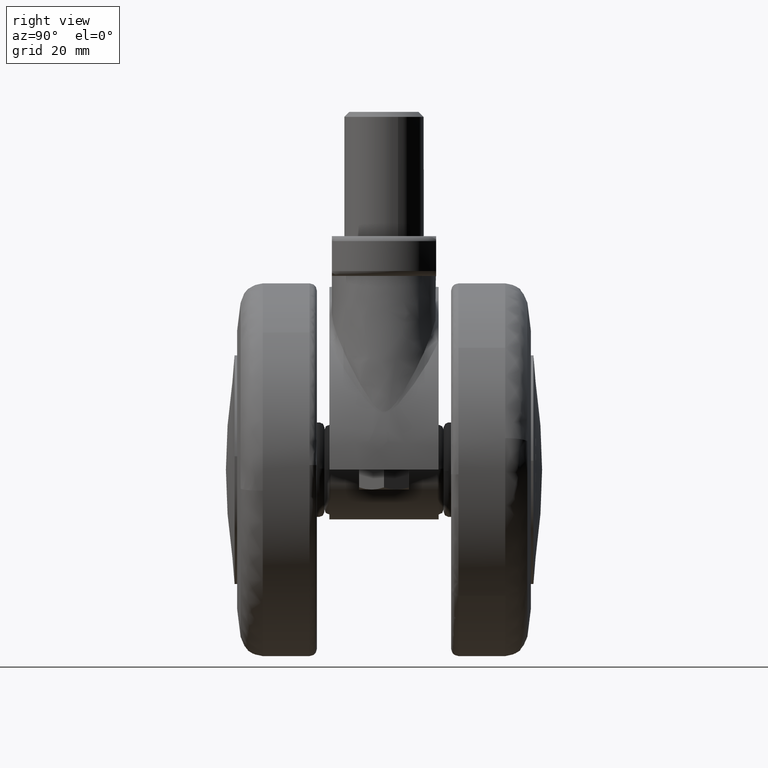
[diagram: clean part render]
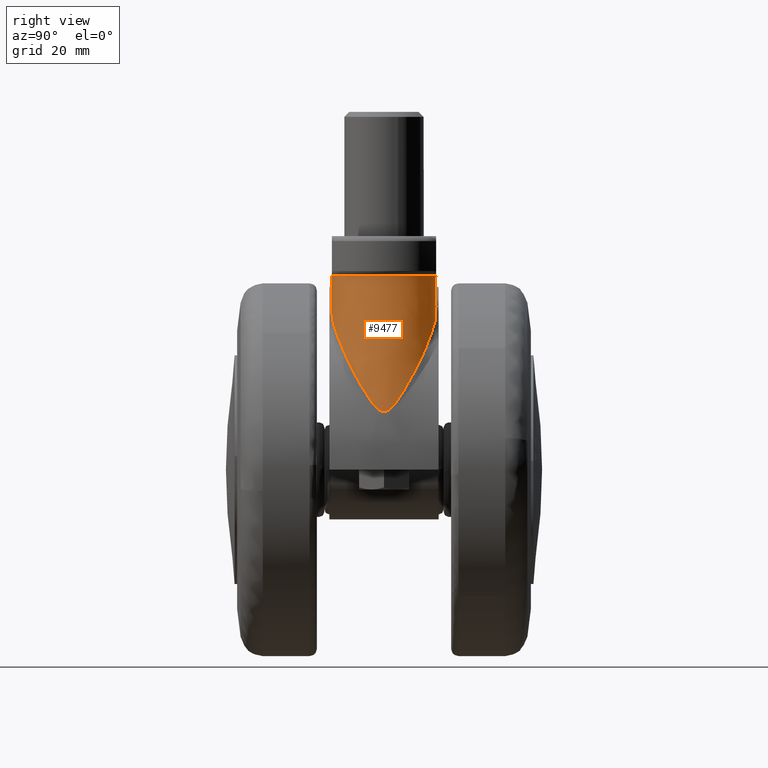
[diagram: same view with one face highlighted and labeled with its STEP entity id]
A machine part, right view. The second image highlights one B-rep face of the part: STEP entity #9477.
In plain terms, the highlighted face is a freeform B-spline surface patch.
Its self-contained STEP definition (entity closure, byte-faithful):
#7871=CARTESIAN_POINT('',(9.734874135307969,2.875159400437090,39.0));
#7872=VERTEX_POINT('',#7871);
#7909=CARTESIAN_POINT('',(9.734874135308280,-2.875159400438115,39.0));
#7910=VERTEX_POINT('',#7909);
#8042=CARTESIAN_POINT('',(15.834273644007199,-9.424800640168330,36.042992598005412));
#8043=VERTEX_POINT('',#8042);
#8059=CARTESIAN_POINT('',(9.734874135308280,-2.875159400438115,39.0));
#8060=CARTESIAN_POINT('',(9.765014946852586,-2.971725987100927,38.987961932139498));
#8061=CARTESIAN_POINT('',(9.796699416023380,-3.067957749255542,38.975272131350849));
#8062=CARTESIAN_POINT('',(9.863174507820219,-3.259745863016546,38.948558339544078));
#8063=CARTESIAN_POINT('',(9.898041406330020,-3.355497784002150,38.934503446514952));
#8064=CARTESIAN_POINT('',(10.006728428578230,-3.640148634965251,38.890530961459071));
#8065=CARTESIAN_POINT('',(10.084478166912660,-3.826137806987287,38.858870211924213));
#8066=CARTESIAN_POINT('',(10.332785888984800,-4.373272351155762,38.756894622463513));
#8067=CARTESIAN_POINT('',(10.518355652744630,-4.723619845631813,38.679613890553057));
#8068=CARTESIAN_POINT('',(10.926585075179609,-5.397147074816104,38.505940396580783));
#8069=CARTESIAN_POINT('',(11.149259347742349,-5.720317123013894,38.409544060022732));
#8070=CARTESIAN_POINT('',(11.509890872524030,-6.185149551346111,38.249585396609803));
#8071=CARTESIAN_POINT('',(11.634547182277871,-6.336766173946026,38.193698887509989));
#8072=CARTESIAN_POINT('',(11.828122530780670,-6.559198968923881,38.105833937558728));
#8073=CARTESIAN_POINT('',(11.893575072163550,-6.632308580095542,38.075950026399113));
#8074=CARTESIAN_POINT('',(12.025779794831941,-6.775953905039536,38.015215864299982));
#8075=CARTESIAN_POINT('',(12.092608204217830,-6.846577595190703,37.984331051875913));
#8076=CARTESIAN_POINT('',(12.430248689094460,-7.193857892863472,37.827311391866182));
#8077=CARTESIAN_POINT('',(12.711520939718110,-7.453052229230631,37.693405138172643));
#8078=CARTESIAN_POINT('',(13.293633666889081,-7.937272633191943,37.408568752348373));
#8079=CARTESIAN_POINT('',(13.594484183909090,-8.162284788316734,37.257635878864043));
#8080=CARTESIAN_POINT('',(14.058920017241670,-8.475670662809202,37.017877502471123));
#8081=CARTESIAN_POINT('',(14.215929892272550,-8.576103517511875,36.935729142439747));
#8082=CARTESIAN_POINT('',(14.454585433310600,-8.720843212216183,36.809069559548931));
#8083=CARTESIAN_POINT('',(14.534762874890280,-8.768162339423656,36.766221692821219));
#8084=CARTESIAN_POINT('',(14.695598953699900,-8.860539796690857,36.679655454487850));
#8085=CARTESIAN_POINT('',(14.776209515660611,-8.905574575668155,36.635963875234751));
#8086=CARTESIAN_POINT('',(15.180156851201581,-9.125156029700733,36.415462183829163));
#8087=CARTESIAN_POINT('',(15.506162540292291,-9.282971687857856,36.232525502262099));
#8088=CARTESIAN_POINT('',(15.834273644007190,-9.424800640168330,36.042992598005377));
#8089=B_SPLINE_CURVE_WITH_KNOTS('',3,(#8059,#8060,#8061,#8062,#8063,#8064,#8065,#8066,#8067,#8068,#8069,#8070,#8071,#8072,#8073,#8074,#8075,#8076,#8077,#8078,#8079,#8080,#8081,#8082,#8083,#8084,#8085,#8086,#8087,#8088),.UNSPECIFIED.,.F.,.U.,(4,2,2,2,2,2,2,2,2,2,2,2,2,2,4),(0.0,0.031250000000000,0.062500000000000,0.125000000000000,0.250000000000000,0.375000000000000,0.437500000000000,0.468750000000001,0.500000000000001,0.625000000000001,0.750000000000002,0.812500000000003,0.843750000000003,0.875000000000003,1.0),.UNSPECIFIED.);
#8090=EDGE_CURVE('',#7910,#8043,#8089,.T.);
#8225=CARTESIAN_POINT('',(15.834272163024050,9.424800000000001,36.042993453493153));
#8226=VERTEX_POINT('',#8225);
#8278=CARTESIAN_POINT('',(15.834272163024030,9.424800000000031,36.042993453493139));
#8279=CARTESIAN_POINT('',(15.507307004264360,9.283466341797638,36.231864388182878));
#8280=CARTESIAN_POINT('',(15.183217956223659,9.126588671450643,36.413732003489862));
#8281=CARTESIAN_POINT('',(14.542307384382291,8.778655094792176,36.763701596248048));
#8282=CARTESIAN_POINT('',(14.225479566498890,8.587615547346342,36.931805288436969));
#8283=CARTESIAN_POINT('',(13.757141502596960,8.272252911238834,37.173708558238673));
#8284=CARTESIAN_POINT('',(13.602896192294541,8.162792457947649,37.252264001329451));
#8285=CARTESIAN_POINT('',(13.298873120510450,7.935196166215691,37.405057824339643));
#8286=CARTESIAN_POINT('',(13.149648062189900,7.817479162857781,37.479019873976704));
#8287=CARTESIAN_POINT('',(12.710647610550110,7.452368673953901,37.693838785172048));
#8288=CARTESIAN_POINT('',(12.429523251913780,7.193045679702175,37.827641975410202));
#8289=CARTESIAN_POINT('',(11.892529837133189,6.640852731537313,38.077384226820762));
#8290=CARTESIAN_POINT('',(11.636648015730801,6.347997167485482,38.193326844980398));
#8291=CARTESIAN_POINT('',(11.274060772394190,5.881437445221686,38.354205244321427));
#8292=CARTESIAN_POINT('',(11.156487775333989,5.720934618763776,38.405764140315988));
#8293=CARTESIAN_POINT('',(10.931703898116970,5.394521469722281,38.503345159788402));
#8294=CARTESIAN_POINT('',(10.824167740370379,5.228237964098526,38.549514434549387));
#8295=CARTESIAN_POINT('',(10.516319186505450,4.720125799719843,38.680475196407713));
#8296=CARTESIAN_POINT('',(10.330719855956330,4.369066170604384,38.757749469488267));
#8297=CARTESIAN_POINT('',(10.083301114738109,3.823368784489873,38.859350381706143));
#8298=CARTESIAN_POINT('',(10.006002576978270,3.638277734453351,38.890824975990952));
#8299=CARTESIAN_POINT('',(9.898124002622998,3.355698993728345,38.934469853992752));
#8300=CARTESIAN_POINT('',(9.863510252711381,3.260681806607597,38.948423123941588));
#8301=CARTESIAN_POINT('',(9.797037506755521,3.068965567155710,38.975136555289090));
#8302=CARTESIAN_POINT('',(9.765141817261602,2.972132460640318,38.987911260823253));
#8303=CARTESIAN_POINT('',(9.734874135307935,2.875159400437097,38.999999999999979));
#8304=B_SPLINE_CURVE_WITH_KNOTS('',3,(#8278,#8279,#8280,#8281,#8282,#8283,#8284,#8285,#8286,#8287,#8288,#8289,#8290,#8291,#8292,#8293,#8294,#8295,#8296,#8297,#8298,#8299,#8300,#8301,#8302,#8303),.UNSPECIFIED.,.F.,.U.,(4,2,2,2,2,2,2,2,2,2,2,2,4),(0.0,0.125000000000000,0.250000000000000,0.312500000000000,0.375000000000000,0.499999999999999,0.624999999999999,0.687499999999999,0.749999999999999,0.875000000000000,0.937500000000000,0.968750000000000,1.0),.UNSPECIFIED.);
#8305=EDGE_CURVE('',#8226,#7872,#8304,.T.);
#8440=CARTESIAN_POINT('',(26.877747129820001,-9.424800640175180,27.080546258881650));
#8441=VERTEX_POINT('',#8440);
#8455=CARTESIAN_POINT('',(15.834273644007199,-9.424800640168330,36.042992598005412));
#8456=CARTESIAN_POINT('',(15.957821354711440,-9.478205239416715,35.971625429012043));
#8457=CARTESIAN_POINT('',(16.080474879437510,-9.528550747649826,35.896862832956977));
#8458=CARTESIAN_POINT('',(16.324467108684779,-9.623992687113347,35.741863585670067));
#8459=CARTESIAN_POINT('',(16.445983128545819,-9.669145522698260,35.661493388375632));
#8460=CARTESIAN_POINT('',(16.807137740395639,-9.796993914353118,35.414900180527688));
#8461=CARTESIAN_POINT('',(17.043792159563601,-9.872324009430907,35.243068456802533));
#8462=CARTESIAN_POINT('',(17.511979131786639,-10.007517437380070,34.889408490841298));
#8463=CARTESIAN_POINT('',(17.743479453118120,-10.067340560872999,34.707530818160052));
#8464=CARTESIAN_POINT('',(18.203417960249471,-10.174012160180320,34.336919483093517));
#8465=CARTESIAN_POINT('',(18.431842068133388,-10.220845274567351,34.148164750146591));
#8466=CARTESIAN_POINT('',(19.115173493928289,-10.344224146907150,33.575455915896342));
#8467=CARTESIAN_POINT('',(19.568077975353820,-10.403924809309640,33.185045392206490));
#8468=CARTESIAN_POINT('',(20.254297257199109,-10.463318131576340,32.600818806073363));
#8469=CARTESIAN_POINT('',(20.484200670487759,-10.478015731930860,32.406315361619733));
#8470=CARTESIAN_POINT('',(20.948082477971621,-10.496936920969111,32.019887235590367));
#8471=CARTESIAN_POINT('',(21.181613247936081,-10.501128212349981,31.828390078726208));
#8472=CARTESIAN_POINT('',(21.651974266879410,-10.498353798498240,31.450719061633372));
#8473=CARTESIAN_POINT('',(21.888948934563899,-10.491378916135430,31.264461591440689));
#8474=CARTESIAN_POINT('',(22.366058364612499,-10.465482318906830,30.896595462039809));
#8475=CARTESIAN_POINT('',(22.606185940065220,-10.446543312471061,30.714978512259570));
#8476=CARTESIAN_POINT('',(23.087628156215491,-10.396226099192480,30.353899025347740));
#8477=CARTESIAN_POINT('',(23.328820060684759,-10.364833037135890,30.174466953646689));
#8478=CARTESIAN_POINT('',(23.807325686735791,-10.290260054598820,29.815524759570071));
#8479=CARTESIAN_POINT('',(24.044856317711229,-10.247063046173491,29.635799242685401));
#8480=CARTESIAN_POINT('',(24.513553743951650,-10.150110281188031,29.272082182400400));
#8481=CARTESIAN_POINT('',(24.744711185984290,-10.096363775777590,29.088077066893941));
#8482=CARTESIAN_POINT('',(25.198355848847431,-9.980108177675335,28.712597097372079));
#8483=CARTESIAN_POINT('',(25.420844559444390,-9.917606668684879,28.521121735042559));
#8484=CARTESIAN_POINT('',(26.072977574327620,-9.720033512811925,27.931885441177410));
#8485=CARTESIAN_POINT('',(26.487067933749760,-9.574930112454259,27.519047386537139));
#8486=CARTESIAN_POINT('',(26.877747129820001,-9.424800640175189,27.080546258881650));
#8487=B_SPLINE_CURVE_WITH_KNOTS('',3,(#8455,#8456,#8457,#8458,#8459,#8460,#8461,#8462,#8463,#8464,#8465,#8466,#8467,#8468,#8469,#8470,#8471,#8472,#8473,#8474,#8475,#8476,#8477,#8478,#8479,#8480,#8481,#8482,#8483,#8484,#8485,#8486),.UNSPECIFIED.,.F.,.U.,(4,2,2,2,2,2,2,2,2,2,2,2,2,2,2,4),(0.0,0.031250000000000,0.062500000000000,0.125000000000001,0.187500000000001,0.250000000000002,0.375000000000001,0.437500000000001,0.500000000000001,0.562500000000001,0.625000000000001,0.687500000000000,0.750000000000000,0.812500000000000,0.875000000000000,1.0),.UNSPECIFIED.);
#8488=EDGE_CURVE('',#8043,#8441,#8487,.T.);
#8635=CARTESIAN_POINT('',(26.877748795748751,9.424799999995100,27.080544389031001));
#8636=VERTEX_POINT('',#8635);
#8666=CARTESIAN_POINT('',(26.877748795748751,9.424799999995100,27.080544389031001));
#8667=CARTESIAN_POINT('',(26.682718876187860,9.499745755344520,27.299447416595552));
#8668=CARTESIAN_POINT('',(26.481465353257661,9.573607309741529,27.512523616480969));
#8669=CARTESIAN_POINT('',(26.066787894455910,9.717050936288310,27.928022532611632));
#8670=CARTESIAN_POINT('',(25.853336953272510,9.786636509087694,28.130457885396108));
#8671=CARTESIAN_POINT('',(25.415140902445700,9.919273914150599,28.526157222115760));
#8672=CARTESIAN_POINT('',(25.191329411526930,9.982033202201258,28.718577423111249));
#8673=CARTESIAN_POINT('',(24.736054925331111,10.098453424623250,29.095071037110859));
#8674=CARTESIAN_POINT('',(24.504592552751919,10.152107174813739,29.279146244065000));
#8675=CARTESIAN_POINT('',(23.802351257756559,10.296932086798259,29.823760043387740));
#8676=CARTESIAN_POINT('',(23.323760361359810,10.371564941290799,30.176796451656120));
#8677=CARTESIAN_POINT('',(22.607686369263920,10.446377572934701,30.713854826430779));
#8678=CARTESIAN_POINT('',(22.369313103663561,10.465227416849320,30.894130738877660));
#8679=CARTESIAN_POINT('',(21.895170549245559,10.491117921585261,31.259619758134068));
#8680=CARTESIAN_POINT('',(21.659410274425799,10.498175090193710,31.444841883717320));
#8681=CARTESIAN_POINT('',(21.191001632184989,10.501202925716020,31.820760718128330));
#8682=CARTESIAN_POINT('',(20.958337976881040,10.497188361497100,32.011436115512872));
#8683=CARTESIAN_POINT('',(20.495219450878022,10.478624543567680,32.397047634650313));
#8684=CARTESIAN_POINT('',(20.264490430559849,10.464058058363230,32.592173348219930));
#8685=CARTESIAN_POINT('',(19.575056798251069,10.404805123758200,33.179039204875792));
#8686=CARTESIAN_POINT('',(19.119591456805122,10.344987543313650,33.571736357177272));
#8687=CARTESIAN_POINT('',(18.545917480104329,10.241450666327291,34.052560535722492));
#8688=CARTESIAN_POINT('',(18.430967173202362,10.219280366301239,34.148220694782999));
#8689=CARTESIAN_POINT('',(18.200396153839350,10.171823899536180,34.338215933835301));
#8690=CARTESIAN_POINT('',(18.084732315139700,10.146526009898849,34.432585002583458));
#8691=CARTESIAN_POINT('',(17.737271274486101,10.065818068179340,34.712469915354831));
#8692=CARTESIAN_POINT('',(17.504757973977451,10.005578655706380,34.895009630076260));
#8693=CARTESIAN_POINT('',(17.036261468500431,9.869998355577170,35.248605640971391));
#8694=CARTESIAN_POINT('',(16.800301283999531,9.794688050880897,35.419707433083893));
#8695=CARTESIAN_POINT('',(16.322589059547440,9.625347514085167,35.745603354388983));
#8696=CARTESIAN_POINT('',(16.080902121114949,9.531408038396261,35.900528027256840));
#8697=CARTESIAN_POINT('',(15.834272163024050,9.424799999999999,36.042993453493153));
#8698=B_SPLINE_CURVE_WITH_KNOTS('',3,(#8666,#8667,#8668,#8669,#8670,#8671,#8672,#8673,#8674,#8675,#8676,#8677,#8678,#8679,#8680,#8681,#8682,#8683,#8684,#8685,#8686,#8687,#8688,#8689,#8690,#8691,#8692,#8693,#8694,#8695,#8696,#8697),.UNSPECIFIED.,.F.,.U.,(4,2,2,2,2,2,2,2,2,2,2,2,2,2,2,4),(0.0,0.062500000000000,0.125000000000000,0.187500000000000,0.249999999999999,0.374999999999999,0.437500000000000,0.499999999999999,0.562499999999999,0.624999999999999,0.749999999999999,0.781249999999999,0.812499999999999,0.874999999999999,0.937500000000000,1.0),.UNSPECIFIED.);
#8699=EDGE_CURVE('',#8636,#8226,#8698,.T.);
#9079=CARTESIAN_POINT('',(26.877747129820008,-9.424800640175176,27.080546258881661));
#9080=CARTESIAN_POINT('',(27.431538442782720,-9.211990753977187,26.458966855845620));
#9081=CARTESIAN_POINT('',(27.964202587116660,-8.973502268622996,25.825171062186168));
#9082=CARTESIAN_POINT('',(28.604584162462050,-8.647189486484791,25.017391968762102));
#9083=CARTESIAN_POINT('',(28.731483164926789,-8.580455529879796,24.854930197936248));
#9084=CARTESIAN_POINT('',(28.981951110527600,-8.444668674251791,24.529490922650950));
#9085=CARTESIAN_POINT('',(29.105589420005320,-8.375583818275683,24.366429850494580));
#9086=CARTESIAN_POINT('',(29.471822995071939,-8.164898623419768,23.876211893973640));
#9087=CARTESIAN_POINT('',(29.709739943627682,-8.019872923363041,23.548019389902990));
#9088=CARTESIAN_POINT('',(30.405501028872120,-7.572039584883481,22.559247660703800));
#9089=CARTESIAN_POINT('',(30.845394492563749,-7.256559592287999,21.894454684848021));
#9090=CARTESIAN_POINT('',(31.680096981457069,-6.594809048670595,20.553756699998900));
#9091=CARTESIAN_POINT('',(32.074902435686070,-6.248579766389152,19.877828519127441));
#9092=CARTESIAN_POINT('',(32.821011611255983,-5.525273461557999,18.515830668020708));
#9093=CARTESIAN_POINT('',(33.172329845116813,-5.148372155787472,17.829680010591371));
#9094=CARTESIAN_POINT('',(33.666881889292021,-4.555450108878508,16.795229030595301));
#9095=CARTESIAN_POINT('',(33.826317809313068,-4.353161984810021,16.449561672571068));
#9096=CARTESIAN_POINT('',(34.057216968387202,-4.041137503705516,15.930533042039110));
#9097=CARTESIAN_POINT('',(34.132863893716021,-3.935602190719856,15.757303619787841));
#9098=CARTESIAN_POINT('',(34.281016338526690,-3.721695765924499,15.411684052932740));
#9099=CARTESIAN_POINT('',(34.353520631630232,-3.613336033889618,15.239302616754610));
#9100=CARTESIAN_POINT('',(34.566222244021539,-3.283226178871517,14.724001996539361));
#9101=CARTESIAN_POINT('',(34.701648171116481,-3.056667706511357,14.382778651070771));
#9102=CARTESIAN_POINT('',(34.894342094140931,-2.701091745995821,13.878481767676639));
#9103=CARTESIAN_POINT('',(34.956825466216557,-2.579903623405108,13.711665614736511));
#9104=CARTESIAN_POINT('',(35.077971871825028,-2.330213766607822,13.381933413613741));
#9105=CARTESIAN_POINT('',(35.136641673410637,-2.201748444029421,13.218993240507880));
#9106=CARTESIAN_POINT('',(35.249576827492362,-1.934088800688256,12.899295393268689));
#9107=CARTESIAN_POINT('',(35.303861760722199,-1.794997416866220,12.742469688979419));
#9108=CARTESIAN_POINT('',(35.368217632899643,-1.610230814857686,12.553094733965359));
#9109=CARTESIAN_POINT('',(35.380911230217620,-1.572718728327919,12.515561634184751));
#9110=CARTESIAN_POINT('',(35.405910720135907,-1.496398779252959,12.441297537588930));
#9111=CARTESIAN_POINT('',(35.418020964106447,-1.458199946100822,12.405149484725991));
#9112=CARTESIAN_POINT('',(35.453691948504670,-1.341565761685799,12.298201919726941));
#9113=CARTESIAN_POINT('',(35.476420259459381,-1.261646798127146,12.229406438960821));
#9114=CARTESIAN_POINT('',(35.519289239817176,-1.096013088224957,12.098598698932131));
#9115=CARTESIAN_POINT('',(35.539436255438687,-1.010315780983556,12.036565557280770));
#9116=CARTESIAN_POINT('',(35.567136391223393,-0.875701160165791,11.950680440214260));
#9117=CARTESIAN_POINT('',(35.575946885378023,-0.829810186276578,11.923255763860720));
#9118=CARTESIAN_POINT('',(35.592574041143003,-0.735558819740049,11.871332191317340));
#9119=CARTESIAN_POINT('',(35.600354976354772,-0.687362793959521,11.846944474813430));
#9120=CARTESIAN_POINT('',(35.621606953361990,-0.540805455704454,11.780154126468251));
#9121=CARTESIAN_POINT('',(35.633115029512680,-0.439894444457601,11.743727535161460));
#9122=CARTESIAN_POINT('',(35.645244239294229,-0.282151516227890,11.705247612194620));
#9123=CARTESIAN_POINT('',(35.648434303076847,-0.228140666050046,11.695105868471780));
#9124=CARTESIAN_POINT('',(35.652763559126470,-0.120326570985241,11.681334893076240));
#9125=CARTESIAN_POINT('',(35.655091479442483,-0.012414598757058,11.673920024388311));
#9126=CARTESIAN_POINT('',(35.653379898782369,0.095695463206858,11.679372466048250));
#9127=CARTESIAN_POINT('',(35.649642918377737,0.203904650513568,11.691262529394360));
#9128=CARTESIAN_POINT('',(35.646742690597392,0.258172001876218,11.700486541995209));
#9129=CARTESIAN_POINT('',(35.635320981754923,0.417763529179566,11.736739591887710));
#9130=CARTESIAN_POINT('',(35.624237780899662,0.519053412661900,11.771844652234931));
#9131=CARTESIAN_POINT('',(35.596879178469003,0.714214608126808,11.857901044839320));
#9132=CARTESIAN_POINT('',(35.580585513783362,0.808108924292738,11.908906042575021));
#9133=CARTESIAN_POINT('',(35.543942657962333,0.990179285052904,12.022652358762860));
#9134=CARTESIAN_POINT('',(35.523761636809468,1.077476388913930,12.084866441674780));
#9135=CARTESIAN_POINT('',(35.480947814145189,1.245172783340882,12.215660554732180));
#9136=CARTESIAN_POINT('',(35.458276699272787,1.325749483891231,12.284362802042629));
#9137=CARTESIAN_POINT('',(35.410912067271347,1.482121665265557,12.426539637664630));
#9138=CARTESIAN_POINT('',(35.386214902507419,1.557905335473423,12.500026462926160));
#9139=CARTESIAN_POINT('',(35.335111577677232,1.705810873732908,12.650601882537149));
#9140=CARTESIAN_POINT('',(35.308763989078457,1.777747623143219,12.727517222777919));
#9141=CARTESIAN_POINT('',(35.254854318391253,1.918079165636043,12.883342488891300));
#9142=CARTESIAN_POINT('',(35.227263317727733,1.986549933592995,12.962338308113461));
#9143=CARTESIAN_POINT('',(35.142778291691187,2.187928025212838,13.201831102181551));
#9144=CARTESIAN_POINT('',(35.084182961239861,2.316856596977297,13.364794262256330));
#9145=CARTESIAN_POINT('',(34.963074996485723,2.567524465172267,13.694866985063010));
#9146=CARTESIAN_POINT('',(34.900555304814063,2.689227999900667,13.862001739584970));
#9147=CARTESIAN_POINT('',(34.707609414133422,3.046410352024187,14.367586642073720));
#9148=CARTESIAN_POINT('',(34.571752802226420,3.274201787549714,14.710258865316010));
#9149=CARTESIAN_POINT('',(34.288069493437490,3.715339576600409,15.398198998860909));
#9150=CARTESIAN_POINT('',(34.140082122857471,3.928812709793438,15.743932678077041));
#9151=CARTESIAN_POINT('',(33.909178162264752,4.241351994539437,16.263459606894688));
#9152=CARTESIAN_POINT('',(33.830719327983530,4.344229585799865,16.436802820028451));
#9153=CARTESIAN_POINT('',(33.670835731075947,4.547667035015350,16.783653205842999));
#9154=CARTESIAN_POINT('',(33.589421854072420,4.648208145568536,16.957132928914579));
#9155=CARTESIAN_POINT('',(33.175826281998312,5.144602696009164,17.822825061016552));
#9156=CARTESIAN_POINT('',(32.823463147485157,5.522788738589746,18.511223609952982));
#9157=CARTESIAN_POINT('',(32.075729280058567,6.247885830936366,19.876450424017161));
#9158=CARTESIAN_POINT('',(31.680343243807020,6.594612658503806,20.553359710029738));
#9159=CARTESIAN_POINT('',(30.845191428148681,7.256721735154597,21.894782290279160));
#9160=CARTESIAN_POINT('',(30.405428036939281,7.572059876591542,22.559318776025570));
#9161=CARTESIAN_POINT('',(29.479036670757431,8.168393969164134,23.875912892376810));
#9162=CARTESIAN_POINT('',(28.992421027983280,8.449392945262121,24.527976763812401));
#9163=CARTESIAN_POINT('',(28.352464205908571,8.775701497513698,25.335465013284331));
#9164=CARTESIAN_POINT('',(28.222797754502910,8.839750526720344,25.496690012436598));
#9165=CARTESIAN_POINT('',(27.960608976820659,8.965035527062273,25.817904851214958));
#9166=CARTESIAN_POINT('',(27.828260137555080,9.026191393719129,25.977685420690118));
#9167=CARTESIAN_POINT('',(27.427425778246128,9.205066688061944,26.454558490136790));
#9168=CARTESIAN_POINT('',(27.155154133149100,9.318199163588842,26.769182581795860));
#9169=CARTESIAN_POINT('',(26.877748795748719,9.424799999995120,27.080544389031012));
#9170=B_SPLINE_CURVE_WITH_KNOTS('',3,(#9079,#9080,#9081,#9082,#9083,#9084,#9085,#9086,#9087,#9088,#9089,#9090,#9091,#9092,#9093,#9094,#9095,#9096,#9097,#9098,#9099,#9100,#9101,#9102,#9103,#9104,#9105,#9106,#9107,#9108,#9109,#9110,#9111,#9112,#9113,#9114,#9115,#9116,#9117,#9118,#9119,#9120,#9121,#9122,#9123,#9124,#9125,#9126,#9127,#9128,#9129,#9130,#9131,#9132,#9133,#9134,#9135,#9136,#9137,#9138,#9139,#9140,#9141,#9142,#9143,#9144,#9145,#9146,#9147,#9148,#9149,#9150,#9151,#9152,#9153,#9154,#9155,#9156,#9157,#9158,#9159,#9160,#9161,#9162,#9163,#9164,#9165,#9166,#9167,#9168,#9169),.UNSPECIFIED.,.F.,.U.,(4,2,2,2,2,2,2,2,2,2,2,2,2,2,2,2,2,2,2,2,2,2,2,1,2,2,2,2,2,2,2,2,2,2,2,2,2,2,2,2,2,2,2,2,2,4),(0.0,0.062500000000000,0.078125000000000,0.093750000000001,0.125000000000001,0.187500000000002,0.250000000000002,0.312500000000003,0.343750000000004,0.359375000000004,0.375000000000004,0.406250000000004,0.421875000000004,0.437500000000004,0.453125000000004,0.457031250000004,0.460937500000004,0.468750000000004,0.476562500000004,0.480468750000004,0.484375000000004,0.492187500000004,0.496093750000004,0.500000000000004,0.503906250000004,0.507812500000004,0.515625000000004,0.523437500000004,0.531250000000004,0.539062500000004,0.546875000000004,0.554687500000004,0.562500000000004,0.578125000000003,0.593750000000003,0.625000000000003,0.656250000000003,0.671875000000003,0.687500000000003,0.750000000000002,0.812500000000002,0.875000000000001,0.937500000000001,0.953125000000001,0.968750000000000,1.0),.UNSPECIFIED.);
#9171=EDGE_CURVE('',#8441,#8636,#9170,.T.);
#9182=CARTESIAN_POINT('',(9.734874135308228,-2.875159400438114,39.0));
#9183=CARTESIAN_POINT('',(12.277823730973108,-11.662172655083738,39.0));
#9184=CARTESIAN_POINT('',(21.475438907018340,-10.399187534074770,39.0));
#9185=CARTESIAN_POINT('',(30.673054083063175,-9.136202413065858,39.0));
#9186=CARTESIAN_POINT('',(30.673054083063182,4.637220E-013,39.0));
#9187=CARTESIAN_POINT('',(30.673054083063175,9.136202413066656,39.0));
#9188=CARTESIAN_POINT('',(21.475438907017431,10.399187534074899,39.0));
#9189=CARTESIAN_POINT('',(12.277823730972070,11.662172655083083,39.0));
#9190=CARTESIAN_POINT('',(9.734874135307969,2.875159400437090,39.0));
#9198=(BOUNDED_CURVE()B_SPLINE_CURVE(2,(#9182,#9183,#9184,#9185,#9186,#9187,#9188,#9189,#9190),.UNSPECIFIED.,.F.,.U.)B_SPLINE_CURVE_WITH_KNOTS((3,2,2,2,3),(0.0,0.250000000000000,0.500000000000000,0.750000000000000,1.0),.UNSPECIFIED.)CURVE()GEOMETRIC_REPRESENTATION_ITEM()RATIONAL_B_SPLINE_CURVE((1.0,0.754400297204961,1.0,0.754400297204961,1.0,0.754400297204961,1.0,0.754400297204961,1.0))REPRESENTATION_ITEM(''));
#9199=EDGE_CURVE('',#7910,#7872,#9198,.T.);
#9443=CARTESIAN_POINT('',(9.569205849360891,-2.786923381530203,39.770999880177428));
#9444=CARTESIAN_POINT('',(15.509994858940340,-2.786923381530203,7.183522043397875));
#9445=CARTESIAN_POINT('',(11.994888865837741,-11.743343718323672,40.213208727305350));
#9446=CARTESIAN_POINT('',(17.935677875417188,-11.743343718323670,7.625730890525802));
#9447=CARTESIAN_POINT('',(21.036027857876501,-10.387573925126540,41.861433834722632));
#9448=CARTESIAN_POINT('',(26.976816867455948,-10.387573925126540,9.273955997943078));
#9449=CARTESIAN_POINT('',(30.077166849915269,-9.031804131929402,43.509658942139907));
#9450=CARTESIAN_POINT('',(36.017955859494705,-9.031804131929404,10.922181105360355));
#9451=CARTESIAN_POINT('',(29.855159178627289,0.255069753875002,43.469186318261620));
#9452=CARTESIAN_POINT('',(35.795948188206737,0.255069753875002,10.881708481482070));
#9453=CARTESIAN_POINT('',(29.633151507339310,9.541943639679406,43.428713694383333));
#9454=CARTESIAN_POINT('',(35.573940516918775,9.541943639679406,10.841235857603785));
#9455=CARTESIAN_POINT('',(20.537900657039021,10.449744291981061,41.770623842770199));
#9456=CARTESIAN_POINT('',(26.478689666618472,10.449744291981061,9.183146005990647));
#9457=CARTESIAN_POINT('',(11.442649806738716,11.357544944282711,40.112533991157065));
#9458=CARTESIAN_POINT('',(17.383438816318165,11.357544944282720,7.525056154377508));
#9459=CARTESIAN_POINT('',(9.447792979564273,2.291937197355839,39.748865971989680));
#9460=CARTESIAN_POINT('',(15.388581989143720,2.291937197355846,7.161388135210130));
#9468=(BOUNDED_SURFACE()B_SPLINE_SURFACE(1,2,((#9443,#9445,#9447,#9449,#9451,#9453,#9455,#9457,#9459),(#9444,#9446,#9448,#9450,#9452,#9454,#9456,#9458,#9460)),.UNSPECIFIED.,.F.,.F.,.U.)B_SPLINE_SURFACE_WITH_KNOTS((2,2),(3,2,2,2,3),(0.0,33.124563179292473),(0.0,15.912376565203189,31.824753130406378,47.737129695609582,63.649506260812757),.UNSPECIFIED.)GEOMETRIC_REPRESENTATION_ITEM()RATIONAL_B_SPLINE_SURFACE(((1.0,0.748955720789002,1.0,0.748955720789002,1.0,0.748955720789002,1.0,0.748955720789002,1.0),(1.0,0.748955720789002,1.0,0.748955720789002,1.0,0.748955720789002,1.0,0.748955720789002,1.0)))REPRESENTATION_ITEM('')SURFACE());
#9469=ORIENTED_EDGE('',*,*,#9199,.F.);
#9470=ORIENTED_EDGE('',*,*,#8090,.T.);
#9471=ORIENTED_EDGE('',*,*,#8488,.T.);
#9472=ORIENTED_EDGE('',*,*,#9171,.T.);
#9473=ORIENTED_EDGE('',*,*,#8699,.T.);
#9474=ORIENTED_EDGE('',*,*,#8305,.T.);
#9475=EDGE_LOOP('',(#9469,#9470,#9471,#9472,#9473,#9474));
#9476=FACE_OUTER_BOUND('',#9475,.T.);
#9477=ADVANCED_FACE('',(#9476),#9468,.T.);